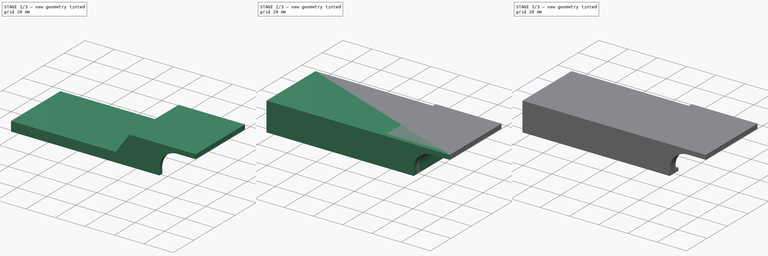
[diagram: build sequence overview — one tinted view per stage of 3, left to right]
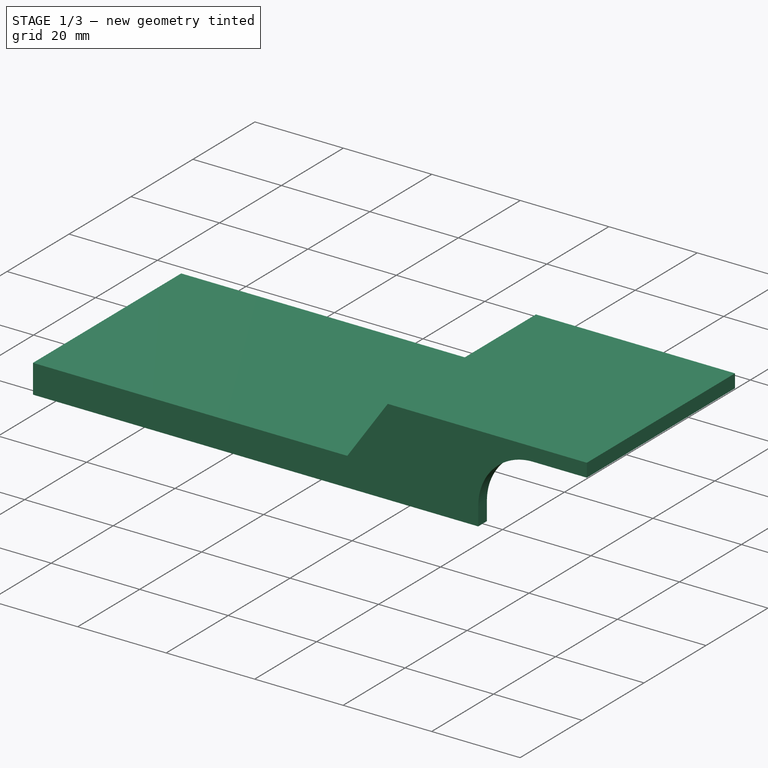
[diagram: stage 1 of 3 — iso view after this stage's code; geometry added in this stage tinted green]
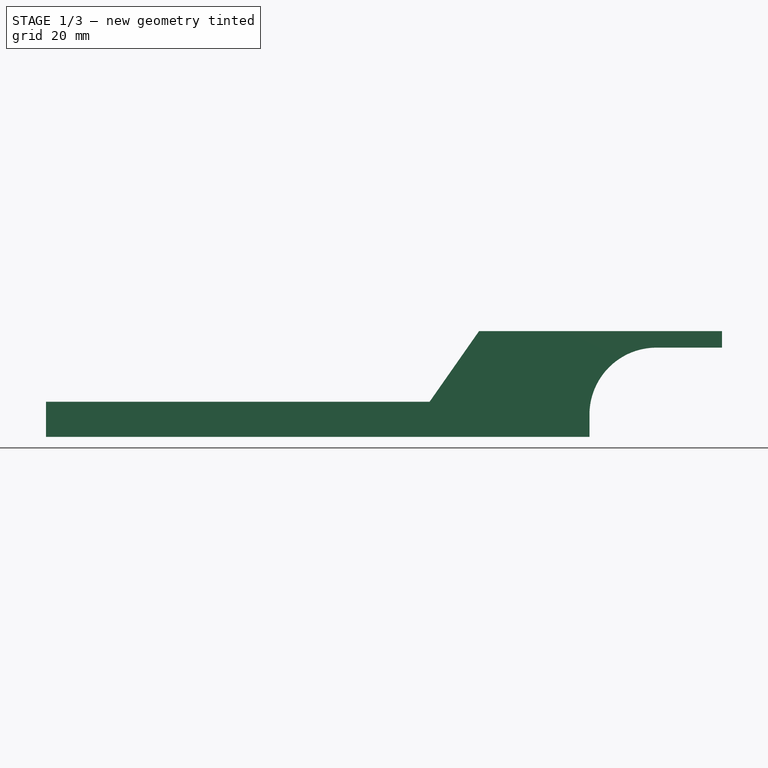
[diagram: stage 1 of 3 — front view after this stage's code; geometry added in this stage tinted green]
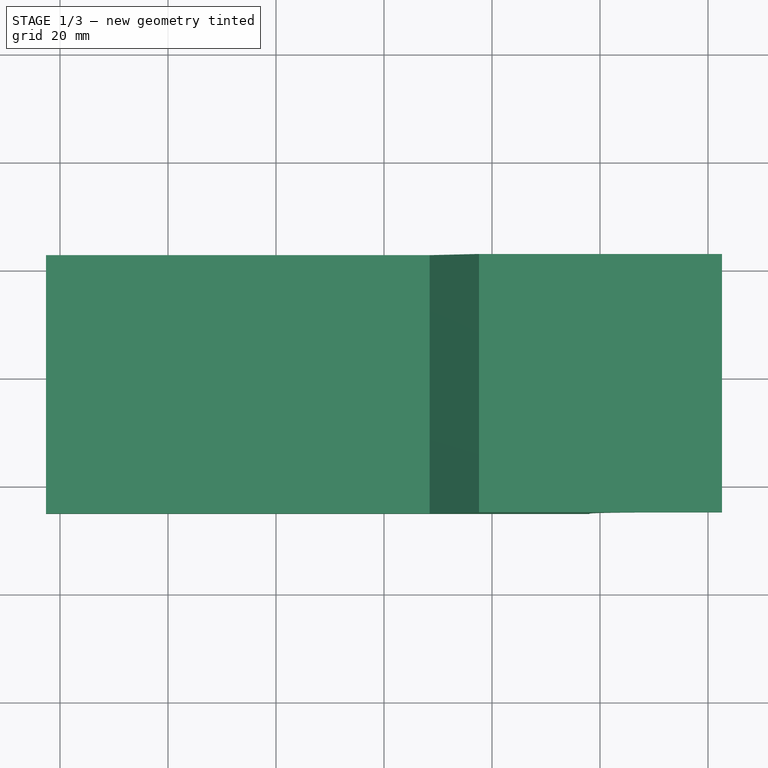
[diagram: stage 1 of 3 — top view after this stage's code; geometry added in this stage tinted green]
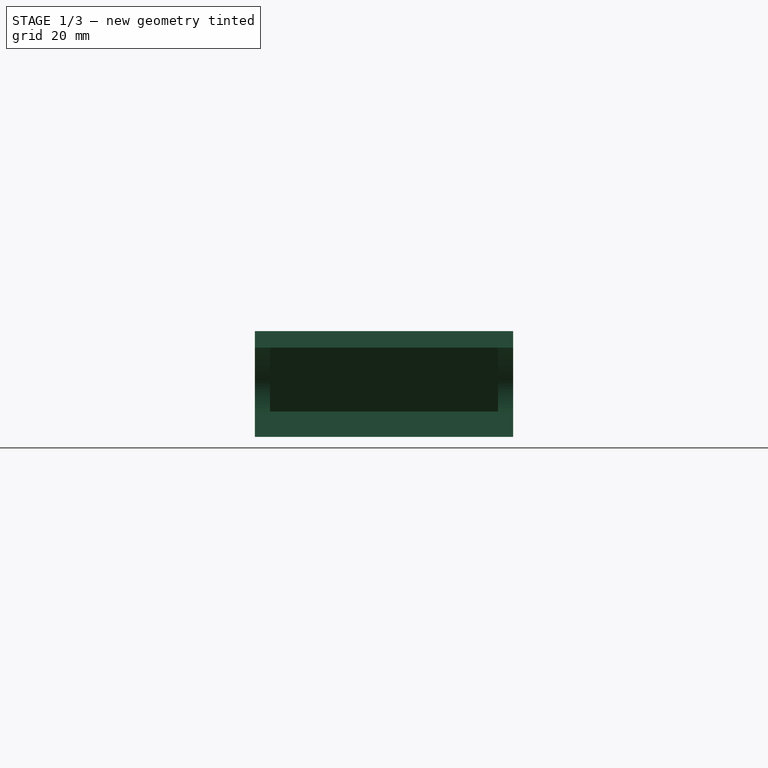
[diagram: stage 1 of 3 — right view after this stage's code; geometry added in this stage tinted green]
FCSTD DOCUMENT  (FreeCAD 1.1R20260414 (Git shallow))
Label: Скошенная подставка для ножей
License: All rights reserved
LicenseURL: https://en.wikipedia.org/wiki/All_rights_reserved
objects: Sketcher::SketchObject×6, PartDesign::Pocket×4, PartDesign::Pad×3, Part::DatumPlane×3, App::Point×2, PartDesign::Body×2
note: 35 computed .brp shape members not serialized (recipe doc carries the construction recipe); baked Part::Feature solids carry a one-line shape summary decoded from their .brp

FEATURE [PartDesign::Body] Body  label="Оригинальная приставка (Перерисованная)"
  AllowCompound = true
  Group = -> [Sketch,Pad,DatumPlane,Sketch001,Pocket,Sketch002,Pocket001]
  Origin = -> Origin
  Placement = pos=(0,-57.8,0) rot=(0,0,1;0rad)
  Tip = -> Pocket001
FEATURE [App::Point] Origin003  label="Начало координат003"
  Role = Origin
FEATURE [Sketcher::SketchObject] Sketch003
  ArcFitTolerance = 1e-06
  AttachmentSupport = -> [Origin002]
  ExternalTypes = [0,0,0,0,0,0,0,0,0,0,0,0,0,0,0,0,0,0,0,0,0,0,0,0]
  FullyConstrained = true
  MakeInternals = false
  MapMode = 5
  Placement = pos=(0,0,0) rot=(1,0,0;1.5708rad)
  _ExternalGeoVersion = 1
  sketch-geometry (16):
    g0: LineSegment StartX=-62.595 StartY=-9.785 StartZ=0 EndX=-61.095 EndY=-9.785 EndZ=0
    g1: LineSegment StartX=50.325 StartY=6.735 StartZ=0 EndX=62.595 EndY=6.735 EndZ=0
    g2: LineSegment StartX=62.595 StartY=6.735 StartZ=0 EndX=62.595 EndY=9.785 EndZ=0
    g3: LineSegment StartX=62.595 StartY=9.785 StartZ=0 EndX=17.595 EndY=9.785 EndZ=0
    g4: LineSegment StartX=38.045 StartY=-5.655 StartZ=0 EndX=38.045 EndY=-9.785 EndZ=0
    g5: ArcOfCircle CenterX=50.445 CenterY=-5.66442 CenterZ=0 NormalX=0 NormalY=0 NormalZ=1 AngleXU=0 Radius=12.4 StartAngle=1.58047 EndAngle=3.14083
    g6: LineSegment [constr] StartX=38.045 StartY=-5.655 StartZ=0 EndX=50.325 EndY=-5.655 EndZ=0
    g7: LineSegment [constr] StartX=50.325 StartY=-5.655 StartZ=0 EndX=50.325 EndY=6.735 EndZ=0
    g8: LineSegment StartX=-62.595 StartY=-3.285 StartZ=0 EndX=-62.595 EndY=-9.785 EndZ=0
    g9: LineSegment StartX=-62.595 StartY=-3.285 StartZ=0 EndX=8.44329 EndY=-3.285 EndZ=0
    g10: LineSegment StartX=8.44329 StartY=-3.285 StartZ=0 EndX=17.595 EndY=9.785 EndZ=0
    g11: LineSegment StartX=50.325 StartY=6.735 StartZ=0 EndX=17.6568 EndY=6.735 EndZ=0
    g12: LineSegment StartX=17.6568 StartY=6.735 StartZ=0 EndX=9.38031 EndY=-5.085 EndZ=0
    g13: LineSegment StartX=9.38031 StartY=-5.085 StartZ=0 EndX=-61.095 EndY=-5.085 EndZ=0
    g14: LineSegment StartX=-61.095 StartY=-9.785 StartZ=0 EndX=38.045 EndY=-9.785 EndZ=0
    g15: LineSegment StartX=-61.095 StartY=-9.785 StartZ=0 EndX=-61.095 EndY=-5.085 EndZ=0
  constraints (47):
    c: Coincident(g1,g2)
    c: Coincident(g2,g3)
    c: Horizontal(g3)
    c: Coincident(g4,g14)
    c: Perpendicular(g2,g1)
    c: Perpendicular(g2,g3)
    c: DistanceX(g3,g3) = 45
    c: DistanceY(g0,g3) = 19.57
    c: DistanceX(g0,g14) = 100.64
    c: DistanceY(g4,g4) = 4.13
    c: Vertical(g4)
    c: DistanceY(g2,g2) = 3.05
    c: Coincident(g5,g4)
    c: Coincident(g5,g1)
    c: DistanceX(g1,g1) = 12.27
    c: Coincident(g4,g6)
    c: Horizontal(g6)
    c: Coincident(g6,g7)
    c: Coincident(g7,g1)
    c: Vertical(g7)
    c: Distance(g5,g7) = 0.12
    c: Symmetric(g0,g2,g-1)
    c: Coincident(g8,g0)
    c: Horizontal(g9)
    c: Coincident(g9,g10)
    c: Coincident(g8,g9)
    c: DistanceY(g8,g8) = 6.5
    c: Vertical(g8)
    c: DistanceX(g8,g2) = 125.19
    c: Coincident(g3,g10)
    c: Angle(g10,g-2) = 0.610865
    c: DistanceX(g3,g3) = 45
    c: Coincident(g1,g11)
    c: Horizontal(g11)
    c: Coincident(g11,g12)
    c: Coincident(g12,g13)
    c: Horizontal(g13)
    c: Horizontal(g0)
    c: Horizontal(g14)
    c: Coincident(g0,g14)
    c: Coincident(g15,g0)
    c: Coincident(g15,g13)
    c: Vertical(g15)
    c: Parallel(g12,g10)
    c: DistanceY(g13,g8) = 1.8
    c: DistanceX(g0,g0) = 1.5
    c: Distance(g10,g12) = 1.8
FEATURE [PartDesign::Pad] Pad001
  Direction = (0,-1,0)
  Length = 45.03
  Length2 = 2.8
  Profile = -> Sketch003 [Edge5,Edge6,Edge7,Edge8,Edge9,Edge14,Edge3,Edge1,Edge2,Edge4]
  ReferenceAxis = -> Sketch003 [N_Axis]
  Refine = true
  SideType = 1
  Suppressed = false
  Type = 0
  Type2 = 0
  expr: Length = 47.83 - 2.8
FEATURE [PartDesign::Pocket] Pocket002
  BaseFeature = -> Pad001
  Direction = (0,1,0)
  Length = 22
  Length2 = 5
  Offset = -2.8
  Profile = -> Sketch003 [Edge3,Edge4,Edge5,Edge12,Edge13,Edge10,Edge11]
  ReferenceAxis = -> Sketch003 [N_Axis]
  Refine = true
  Reversed = true
  SideType = 0
  Suppressed = false
  Type = 3
  Type2 = 0
  UpToFace = -> Pad001 [Face9]
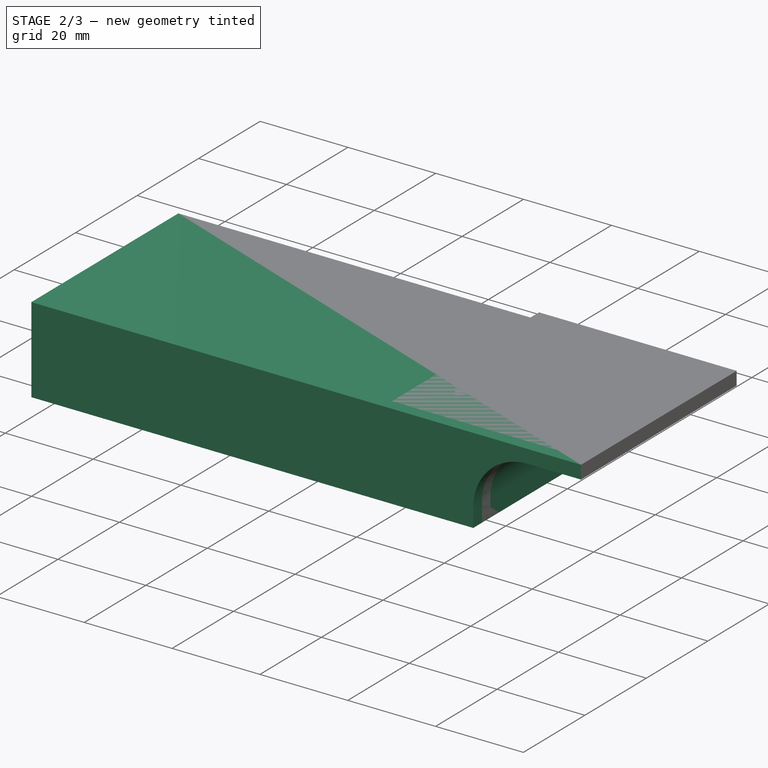
[diagram: stage 2 of 3 — iso view after this stage's code; geometry added in this stage tinted green]
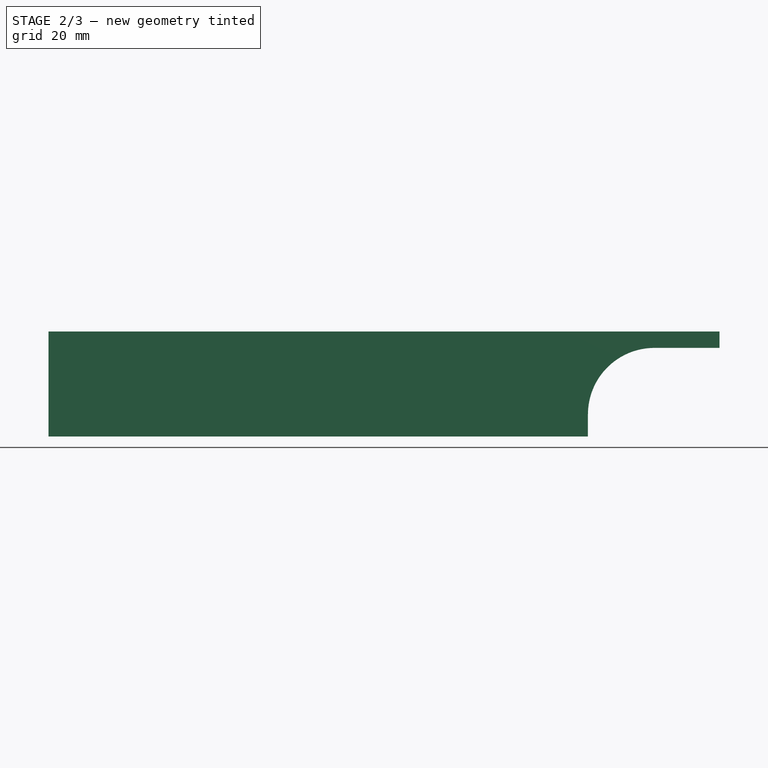
[diagram: stage 2 of 3 — front view after this stage's code; geometry added in this stage tinted green]
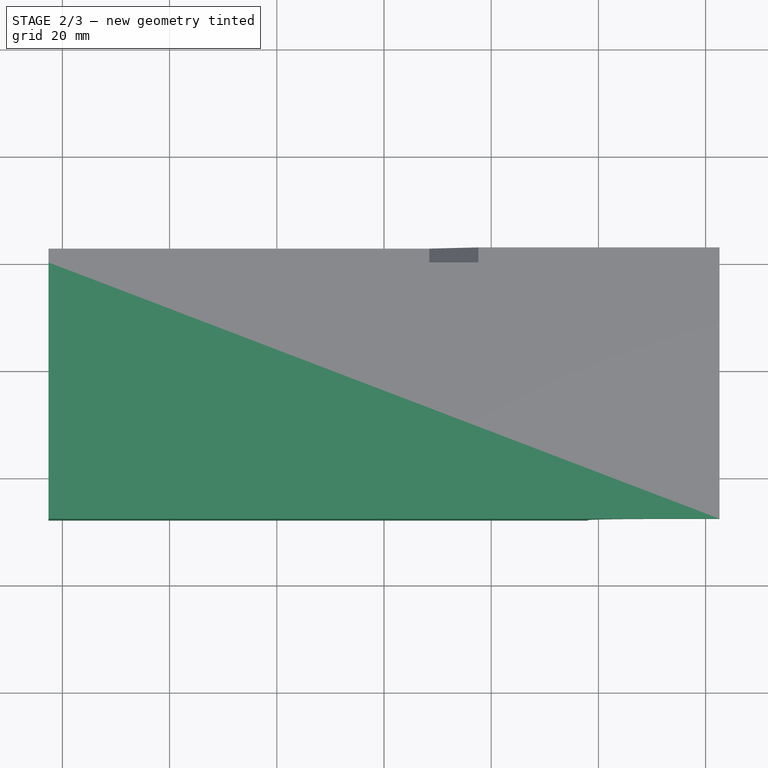
[diagram: stage 2 of 3 — top view after this stage's code; geometry added in this stage tinted green]
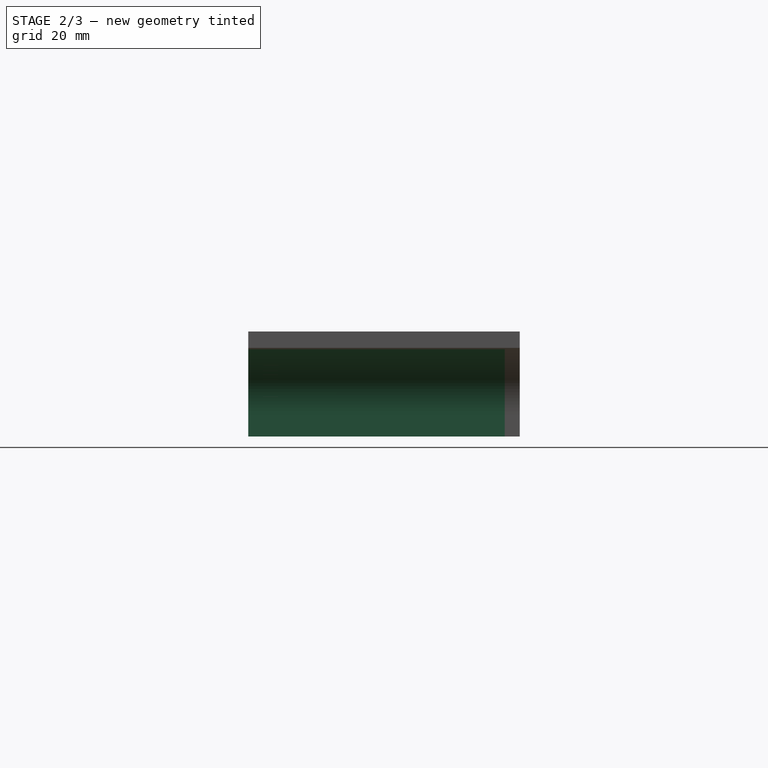
[diagram: stage 2 of 3 — right view after this stage's code; geometry added in this stage tinted green]
FEATURE [App::Point] Origin001  label="Начало координат"
  Role = Origin
FEATURE [Sketcher::SketchObject] Sketch
  ArcFitTolerance = 1e-06
  AttachmentSupport = -> [Origin]
  ExternalTypes = [0,0,0,0,0,0,0,0,0,0,0,0,0,0,0,0,0,0,0,0,0,0,0,0]
  FullyConstrained = true
  MakeInternals = false
  MapMode = 5
  Placement = pos=(0,0,0) rot=(1,0,0;1.5708rad)
  _ExternalGeoVersion = 1
  sketch-geometry (9):
    g0: LineSegment StartX=-62.595 StartY=9.785 StartZ=0 EndX=-62.595 EndY=-9.785 EndZ=0
    g1: LineSegment StartX=-62.595 StartY=-9.785 StartZ=0 EndX=38.045 EndY=-9.785 EndZ=0
    g2: LineSegment StartX=50.325 StartY=6.735 StartZ=0 EndX=62.595 EndY=6.735 EndZ=0
    g3: LineSegment StartX=62.595 StartY=6.735 StartZ=0 EndX=62.595 EndY=9.785 EndZ=0
    g4: LineSegment StartX=62.595 StartY=9.785 StartZ=0 EndX=-62.595 EndY=9.785 EndZ=0
    g5: LineSegment StartX=38.045 StartY=-5.655 StartZ=0 EndX=38.045 EndY=-9.785 EndZ=0
    g6: ArcOfCircle CenterX=50.445 CenterY=-5.66442 CenterZ=0 NormalX=0 NormalY=0 NormalZ=1 AngleXU=0 Radius=12.4 StartAngle=1.58047 EndAngle=3.14083
    g7: LineSegment [constr] StartX=38.045 StartY=-5.655 StartZ=0 EndX=50.325 EndY=-5.655 EndZ=0
    g8: LineSegment [constr] StartX=50.325 StartY=-5.655 StartZ=0 EndX=50.325 EndY=6.735 EndZ=0
  constraints (27):
    c: Vertical(g0)
    c: Coincident(g0,g1)
    c: Horizontal(g1)
    c: Coincident(g2,g3)
    c: Coincident(g3,g4)
    c: Coincident(g4,g0)
    c: Horizontal(g4)
    c: Coincident(g5,g1)
    c: Perpendicular(g3,g2)
    c: Perpendicular(g3,g4)
    c: DistanceX(g4,g4) = 125.19
    c: DistanceX(g4,g4) = 125.19
    c: DistanceY(g0,g0) = 19.57
    c: DistanceX(g1,g1) = 100.64
    c: DistanceY(g5,g5) = 4.13
    c: Vertical(g5)
    c: DistanceY(g3,g3) = 3.05
    c: Coincident(g6,g5)
    c: Coincident(g6,g2)
    c: DistanceX(g2,g2) = 12.27
    c: Coincident(g5,g7)
    c: Horizontal(g7)
    c: Coincident(g7,g8)
    c: Coincident(g8,g2)
    c: Vertical(g8)
    c: Distance(g6,g8) = 0.12
    c: Symmetric(g0,g3,g-1)
FEATURE [PartDesign::Pad] Pad
  Direction = (0,-1,2e-16)
  Length = 47.83
  Length2 = 10
  Profile = -> Sketch
  ReferenceAxis = -> Sketch [N_Axis]
  Refine = true
  SideType = 0
  Suppressed = false
  Type = 0
  Type2 = 0
FEATURE [Part::DatumPlane] DatumPlane002
  AttachmentSupport = -> [Pocket002]
  MapMode = 5
  Placement = pos=(38.045,0,0) rot=(0.57735,0.57735,0.57735;2.0944rad)
FEATURE [Sketcher::SketchObject] Sketch004
  ArcFitTolerance = 1e-06
  AttachmentSupport = -> [DatumPlane002]
  ExternalGeometry = -> [Pocket002]
  ExternalTypes = [0,0]
  FullyConstrained = false
  MakeInternals = false
  MapMode = 5
  Placement = pos=(38.045,0,0) rot=(0.57735,0.57735,0.57735;2.0944rad)
  _ExternalGeoVersion = 1
  sketch-geometry (9):
    g0: LineSegment StartX=-42.23 StartY=-9.785 StartZ=0 EndX=-39.43 EndY=-9.785 EndZ=0
    g1: LineSegment StartX=-39.43 StartY=-9.785 StartZ=0 EndX=-39.43 EndY=-7.615 EndZ=0
    g2: LineSegment StartX=-39.43 StartY=-7.615 StartZ=0 EndX=-42.23 EndY=-7.615 EndZ=0
    g3: LineSegment StartX=-42.23 StartY=-7.615 StartZ=0 EndX=-42.23 EndY=-9.785 EndZ=0
    g4: LineSegment StartX=-2.2e-15 StartY=-9.785 StartZ=0 EndX=-2.2e-15 EndY=-7.615 EndZ=0
    g5: LineSegment StartX=-2.2e-15 StartY=-7.615 StartZ=0 EndX=-2.8 EndY=-7.615 EndZ=0
    g6: LineSegment StartX=-2.8 StartY=-7.615 StartZ=0 EndX=-2.8 EndY=-9.785 EndZ=0
    g7: LineSegment StartX=-2.8 StartY=-9.785 StartZ=0 EndX=-2.2e-15 EndY=-9.785 EndZ=0
    g8: LineSegment [constr] StartX=-21.115 StartY=7.74698 StartZ=0 EndX=-21.115 EndY=-16.6512 EndZ=0
  constraints (22):
    c: Coincident(g0,g1)
    c: Coincident(g1,g2)
    c: Coincident(g2,g3)
    c: Coincident(g3,g0)
    c: Horizontal(g0)
    c: Horizontal(g2)
    c: Vertical(g1)
    c: Vertical(g3)
    c: Coincident(g0,g-3)
    c: Coincident(g4,g5)
    c: Coincident(g5,g6)
    c: Coincident(g6,g7)
    c: Coincident(g7,g4)
    c: Vertical(g4)
    c: Vertical(g6)
    c: Horizontal(g5)
    c: Coincident(g4,g-4)
    c: Symmetric(g6,g0,g8)
    c: Symmetric(g1,g5,g8)
    c: Equal(g5,g2)
    c: DistanceX(g5,g5) = 2.8
    c: DistanceY(g4,g4) = 2.17
FEATURE [PartDesign::Pad] Pad002
  BaseFeature = -> Pocket002
  Direction = (1,0,0)
  Length = 10
  Length2 = 10
  Profile = -> Sketch004
  ReferenceAxis = -> Sketch004 [N_Axis]
  Refine = true
  Reversed = true
  SideType = 0
  Suppressed = false
  Type = 2
  Type2 = 0
FEATURE [Part::DatumPlane] DatumPlane003
  AttachmentSupport = -> [Pad002]
  MapMode = 5
  Placement = pos=(-61.095,0,0) rot=(0.57735,0.57735,0.57735;2.0944rad)
FEATURE [Sketcher::SketchObject] Sketch005
  ArcFitTolerance = 1e-06
  AttachmentSupport = -> [DatumPlane003]
  ExternalGeometry = -> [Pad002]
  ExternalTypes = [0,0]
  FullyConstrained = true
  MakeInternals = false
  MapMode = 5
  Placement = pos=(-61.095,0,0) rot=(0.57735,0.57735,0.57735;2.0944rad)
  _ExternalGeoVersion = 1
  sketch-geometry (3):
    g0: LineSegment StartX=-39.43 StartY=-5.085 StartZ=0 EndX=-39.43 EndY=-9.785 EndZ=0
    g1: LineSegment StartX=-2.8 StartY=-9.785 StartZ=0 EndX=-2.8 EndY=-5.085 EndZ=0
    g2: LineSegment StartX=-2.8 StartY=-5.085 StartZ=0 EndX=-39.43 EndY=-5.085 EndZ=0
  constraints (8):
    c: Coincident(g1,g2)
    c: Coincident(g2,g0)
    c: Vertical(g0)
    c: Vertical(g1)
    c: Horizontal(g2)
    c: Coincident(g1,g-3)
    c: Coincident(g0,g-3)
    c: PointOnObject(g1,g-4)
FEATURE [PartDesign::Pocket] Pocket003
  BaseFeature = -> Pad002
  Direction = (-1,0,0)
  Length = 5
  Length2 = 5
  Profile = -> Sketch005
  ReferenceAxis = -> Sketch005 [N_Axis]
  Refine = true
  SideType = 0
  Suppressed = false
  Type = 1
  Type2 = 0
FEATURE [PartDesign::Body] Body001  label="Скошеннная приставка"
  AllowCompound = true
  Group = -> [Sketch003,Pad001,Pocket002,DatumPlane002,DatumPlane003,Sketch004,Pad002,Sketch005,Pocket003]
  Origin = -> Origin002
  Tip = -> Pocket003
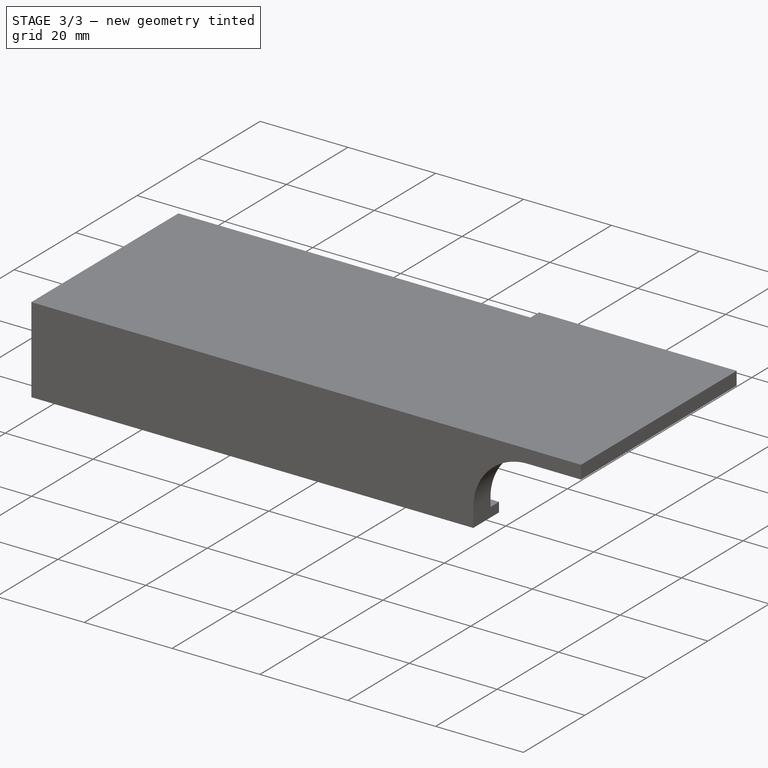
[diagram: stage 3 of 3 — iso view after this stage's code; geometry added in this stage tinted green]
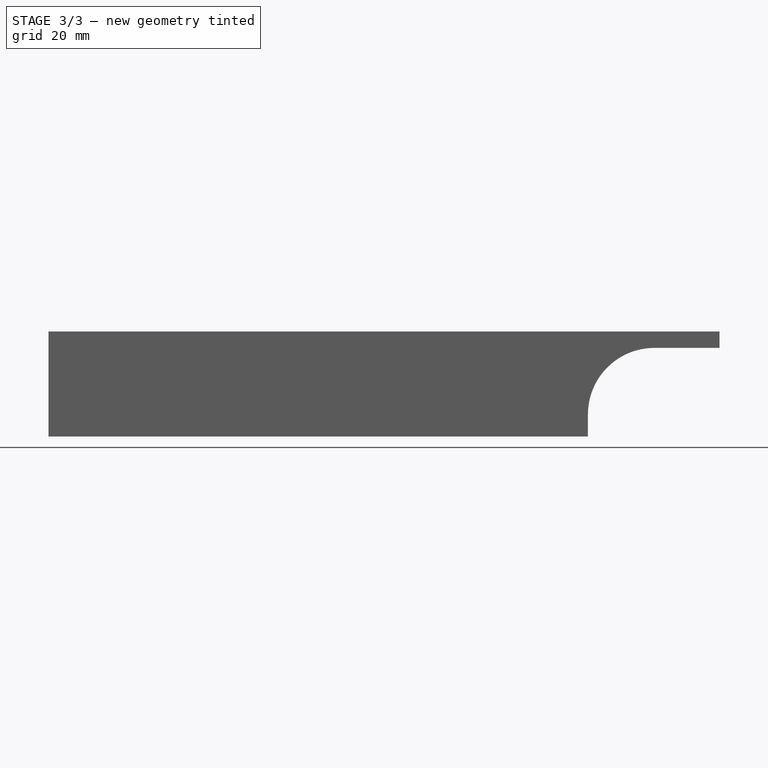
[diagram: stage 3 of 3 — front view after this stage's code; geometry added in this stage tinted green]
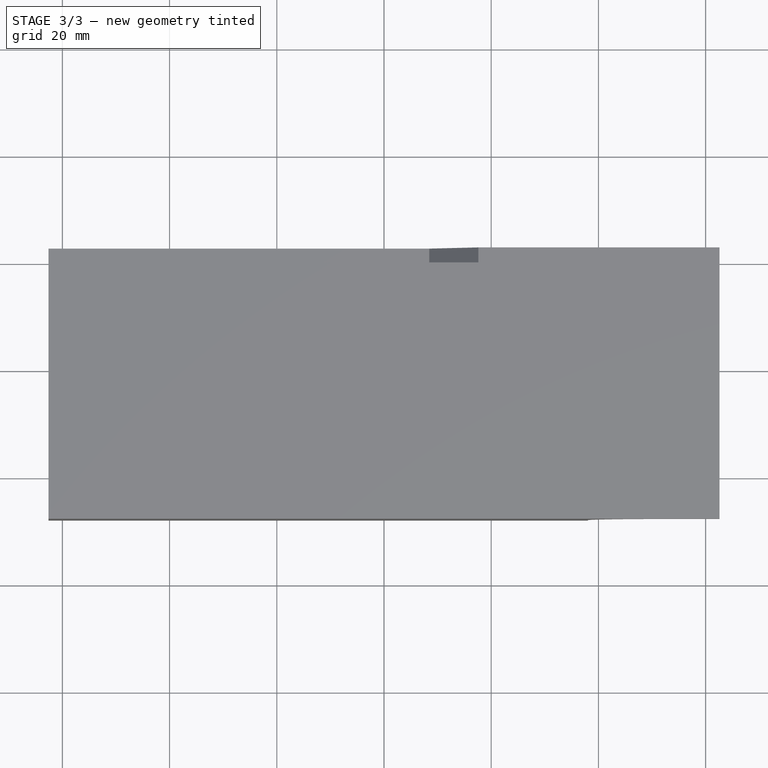
[diagram: stage 3 of 3 — top view after this stage's code; geometry added in this stage tinted green]
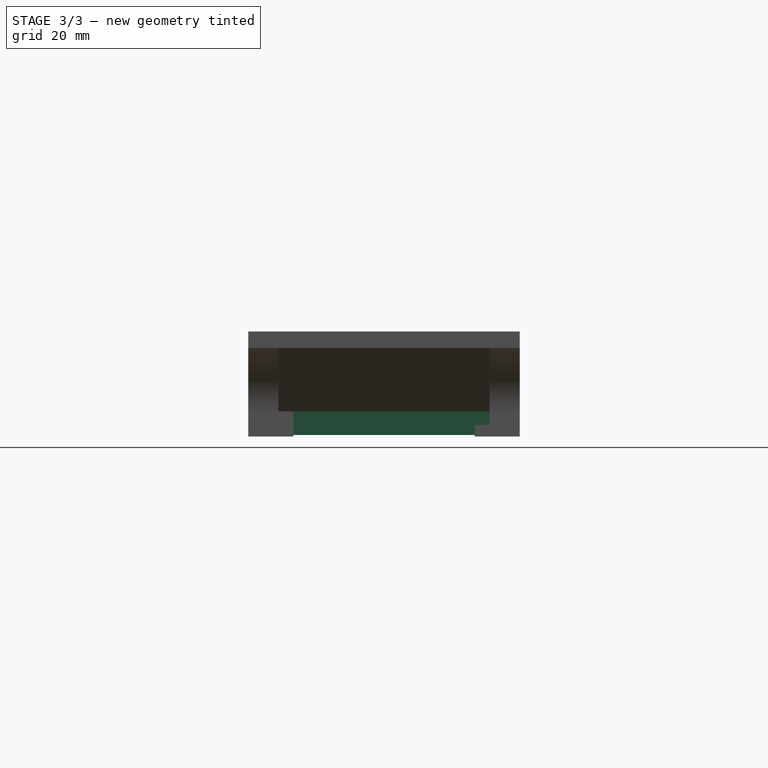
[diagram: stage 3 of 3 — right view after this stage's code; geometry added in this stage tinted green]
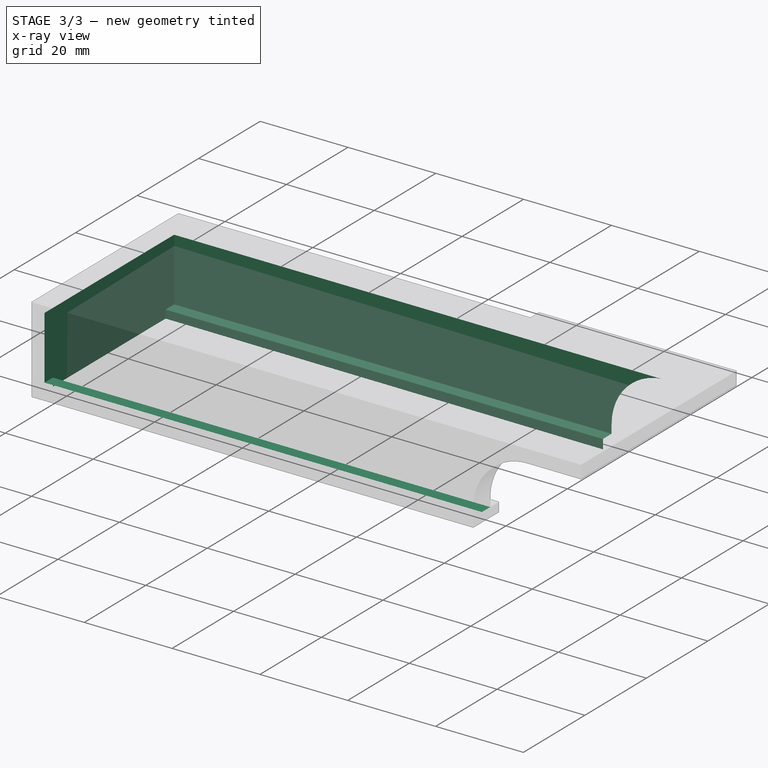
[diagram: stage 3 of 3 — x-ray composite at the iso view; earlier geometry ghosted, this stage's added geometry solid]
FEATURE [Part::DatumPlane] DatumPlane
  AttachmentSupport = -> [Pad]
  MapMode = 5
  Placement = pos=(38.045,0,0) rot=(0.57735,0.57735,0.57735;2.0944rad)
FEATURE [Sketcher::SketchObject] Sketch001
  ArcFitTolerance = 1e-06
  AttachmentSupport = -> [DatumPlane]
  ExternalGeometry = -> [Pad]
  ExternalTypes = [0,0,0,0]
  FullyConstrained = false
  MakeInternals = false
  MapMode = 5
  Placement = pos=(38.045,0,0) rot=(0.57735,0.57735,0.57735;2.0944rad)
  _ExternalGeoVersion = 1
  sketch-geometry (9):
    g0: LineSegment StartX=-45.03 StartY=6.735 StartZ=0 EndX=-2.8 EndY=6.735 EndZ=0
    g1: LineSegment StartX=-2.8 StartY=6.735 StartZ=0 EndX=-2.8 EndY=-7.615 EndZ=0
    g2: LineSegment StartX=-2.8 StartY=-7.615 StartZ=0 EndX=-5.6 EndY=-7.615 EndZ=0
    g3: LineSegment StartX=-5.6 StartY=-7.615 StartZ=0 EndX=-5.6 EndY=-9.785 EndZ=0
    g4: LineSegment StartX=-5.6 StartY=-9.785 StartZ=0 EndX=-42.23 EndY=-9.785 EndZ=0
    g5: LineSegment StartX=-42.23 StartY=-9.785 StartZ=0 EndX=-42.23 EndY=-7.615 EndZ=0
    g6: LineSegment StartX=-42.23 StartY=-7.615 StartZ=0 EndX=-45.03 EndY=-7.615 EndZ=0
    g7: LineSegment StartX=-45.03 StartY=-7.615 StartZ=0 EndX=-45.03 EndY=6.735 EndZ=0
    g8: LineSegment [constr] StartX=-23.915 StartY=20.0939 StartZ=0 EndX=-23.915 EndY=-18.856 EndZ=0
  constraints (22):
    c: Coincident(g0,g1)
    c: Coincident(g1,g2)
    c: Horizontal(g2)
    c: Coincident(g2,g3)
    c: Coincident(g3,g4)
    c: Horizontal(g4)
    c: Coincident(g4,g5)
    c: Vertical(g5)
    c: Coincident(g5,g6)
    c: Coincident(g6,g7)
    c: Coincident(g7,g0)
    c: Vertical(g7)
    c: Vertical(g3)
    c: DistanceX(g0,g0) = 42.23
    c: DistanceY(g-4,g2) = 2.17
    c: DistanceX(g2,g2) = 2.8
    c: Symmetric(g-3,g-5,g8)
    c: Symmetric(g0,g0,g8)
    c: Symmetric(g1,g6,g8)
    c: Symmetric(g2,g5,g8)
    c: DistanceY(g0,g-3) = 3.05
    c: Horizontal(g-4,g3)
FEATURE [PartDesign::Pocket] Pocket
  BaseFeature = -> Pad
  Direction = (-1,0,0)
  Length = 5
  Length2 = 5
  Offset = -1
  Profile = -> Sketch001 [Edge4,Edge5,Edge3,Edge2,Edge1,Edge8,Edge7,Edge6]
  ReferenceAxis = -> Sketch001 [N_Axis]
  Refine = true
  SideType = 2
  Suppressed = false
  Type = 3
  Type2 = 0
  UpToFace = -> Pad [Face4]
FEATURE [Sketcher::SketchObject] Sketch002
  ArcFitTolerance = 1e-06
  AttachmentSupport = -> [DatumPlane]
  ExternalGeometry = -> [Sketch001]
  ExternalTypes = [0,0]
  FullyConstrained = true
  MakeInternals = false
  MapMode = 5
  Placement = pos=(38.045,0,0) rot=(0.57735,0.57735,0.57735;2.0944rad)
  _ExternalGeoVersion = 1
  sketch-geometry (3):
    g0: LineSegment StartX=-5.6 StartY=-9.505 StartZ=0 EndX=-42.23 EndY=-9.505 EndZ=0
    g1: LineSegment StartX=-42.23 StartY=-9.505 StartZ=0 EndX=-42.23 EndY=-9.785 EndZ=0
    g2: LineSegment StartX=-5.6 StartY=-9.785 StartZ=0 EndX=-5.6 EndY=-9.505 EndZ=0
  constraints (8):
    c: Coincident(g0,g1)
    c: Coincident(g2,g0)
    c: Horizontal(g0)
    c: Vertical(g1)
    c: Vertical(g2)
    c: Coincident(g1,g-4)
    c: Coincident(g2,g-4)
    c: DistanceY(g2,g2) = 0.28
FEATURE [PartDesign::Pocket] Pocket001
  BaseFeature = -> Pocket
  Direction = (-1,0,0)
  Length = 5
  Length2 = 5
  Profile = -> Sketch002
  ReferenceAxis = -> Sketch002 [N_Axis]
  Refine = true
  SideType = 0
  Suppressed = false
  Type = 1
  Type2 = 0
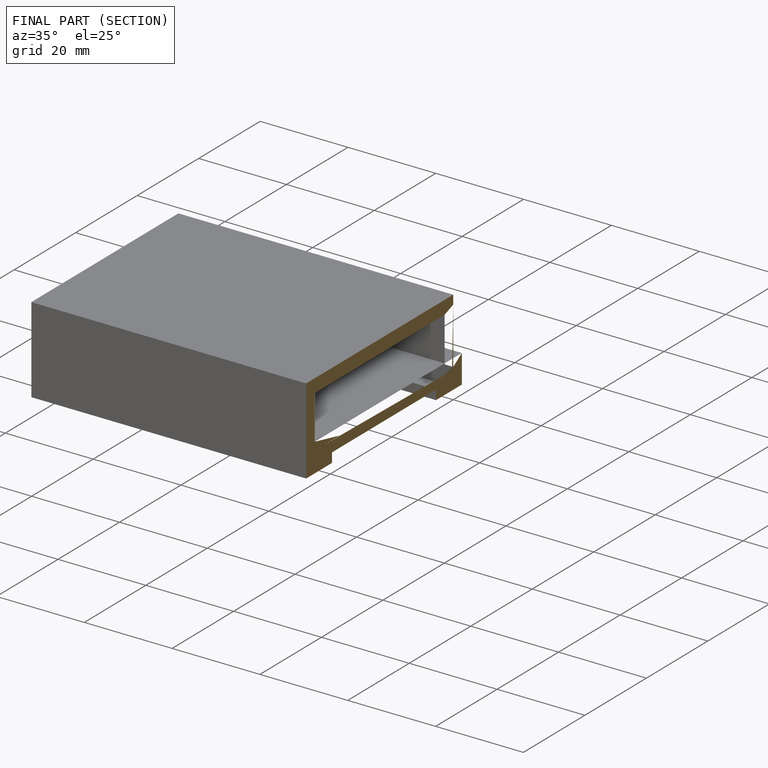
[diagram: finished part — half-section view (interior)]
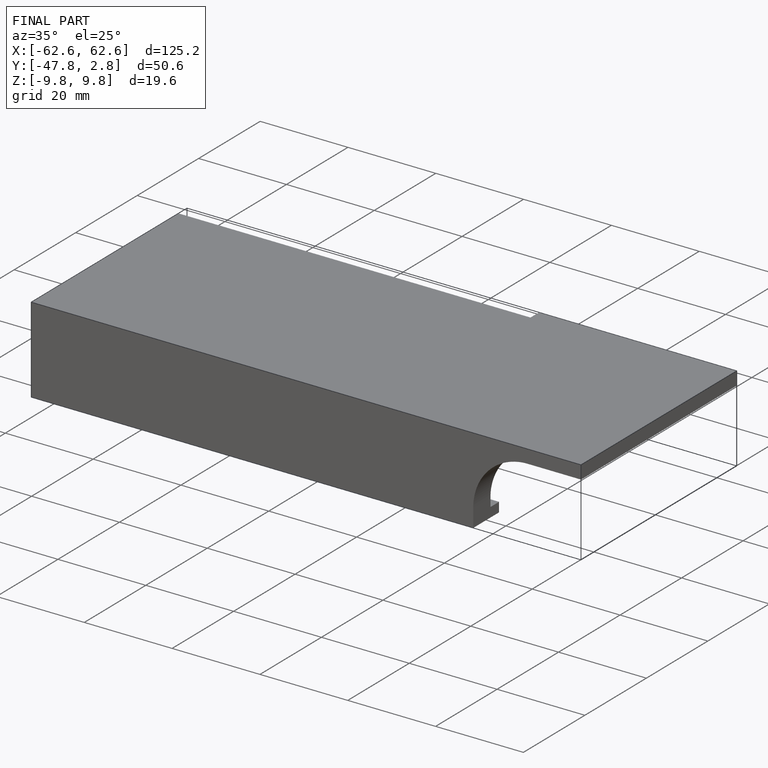
[diagram: finished part — iso view with bounding-box wireframe]
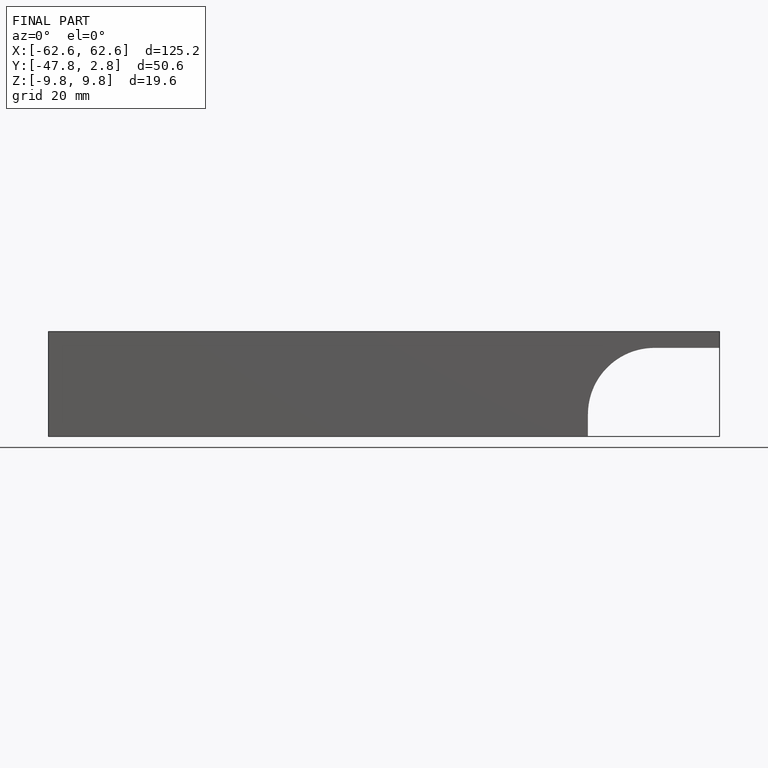
[diagram: finished part — front view with bounding-box wireframe]
